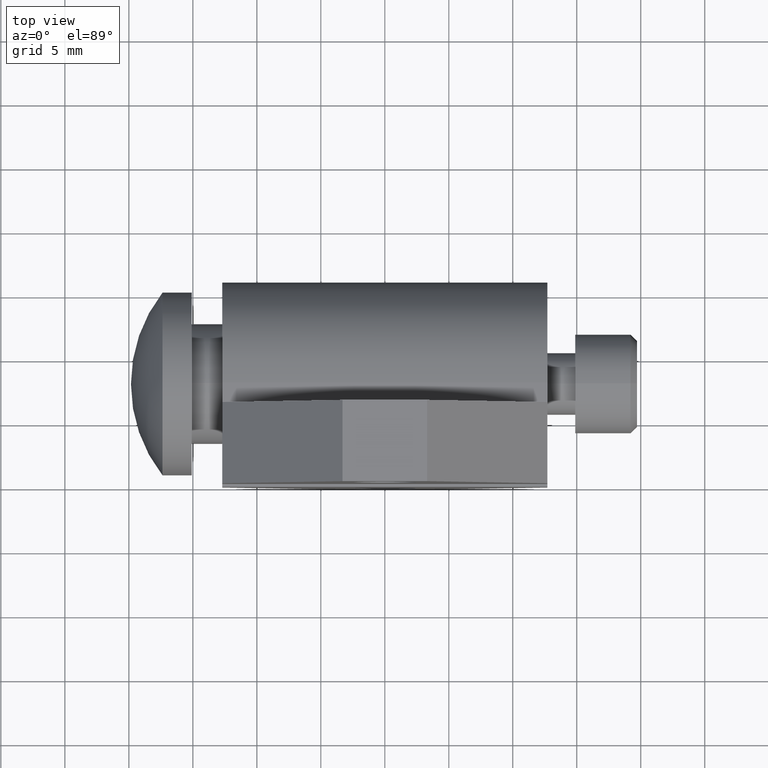
[diagram: clean part render]
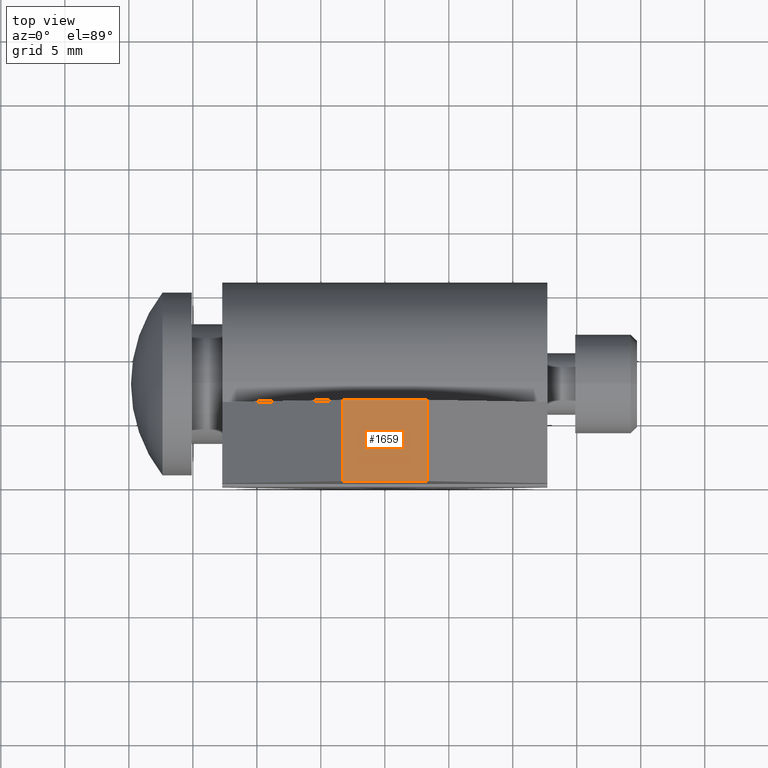
[diagram: same view with one face highlighted and labeled with its STEP entity id]
A machine part, top view. The second image highlights one B-rep face of the part: STEP entity #1659.
In plain terms, the highlighted planar face has unit normal (0, 0, 1).
Its self-contained STEP definition (entity closure, byte-faithful):
#612=DIRECTION('',(1.E0,0.E0,0.E0));
#613=VECTOR('',#612,2.6E-1);
#614=CARTESIAN_POINT('',(-1.3E-1,0.E0,7.5E-1));
#615=LINE('',#614,#613);
#728=DIRECTION('',(1.E0,0.E0,0.E0));
#729=VECTOR('',#728,2.6E-1);
#730=CARTESIAN_POINT('',(-1.3E-1,2.5E-1,7.5E-1));
#731=LINE('',#730,#729);
#830=DIRECTION('',(0.E0,1.E0,0.E0));
#831=VECTOR('',#830,2.5E-1);
#832=CARTESIAN_POINT('',(1.3E-1,0.E0,7.5E-1));
#833=LINE('',#832,#831);
#844=DIRECTION('',(0.E0,1.E0,0.E0));
#845=VECTOR('',#844,2.5E-1);
#846=CARTESIAN_POINT('',(-1.3E-1,0.E0,7.5E-1));
#847=LINE('',#846,#845);
#968=CARTESIAN_POINT('',(1.3E-1,0.E0,7.5E-1));
#969=CARTESIAN_POINT('',(1.3E-1,2.5E-1,7.5E-1));
#970=VERTEX_POINT('',#968);
#971=VERTEX_POINT('',#969);
#972=CARTESIAN_POINT('',(-1.3E-1,0.E0,7.5E-1));
#973=CARTESIAN_POINT('',(-1.3E-1,2.5E-1,7.5E-1));
#974=VERTEX_POINT('',#972);
#975=VERTEX_POINT('',#973);
#1647=CARTESIAN_POINT('',(-5.E-1,0.E0,7.5E-1));
#1648=DIRECTION('',(0.E0,0.E0,1.E0));
#1649=DIRECTION('',(1.E0,0.E0,0.E0));
#1650=AXIS2_PLACEMENT_3D('',#1647,#1648,#1649);
#1651=PLANE('',#1650);
#1652=ORIENTED_EDGE('',*,*,#1496,.F.);
#1654=ORIENTED_EDGE('',*,*,#1653,.T.);
#1655=ORIENTED_EDGE('',*,*,#1570,.T.);
#1656=ORIENTED_EDGE('',*,*,#1641,.F.);
#1657=EDGE_LOOP('',(#1652,#1654,#1655,#1656));
#1658=FACE_OUTER_BOUND('',#1657,.F.);
#1659=ADVANCED_FACE('',(#1658),#1651,.T.);
#1496=EDGE_CURVE('',#974,#970,#615,.T.);
#1570=EDGE_CURVE('',#975,#971,#731,.T.);
#1641=EDGE_CURVE('',#970,#971,#833,.T.);
#1653=EDGE_CURVE('',#974,#975,#847,.T.);